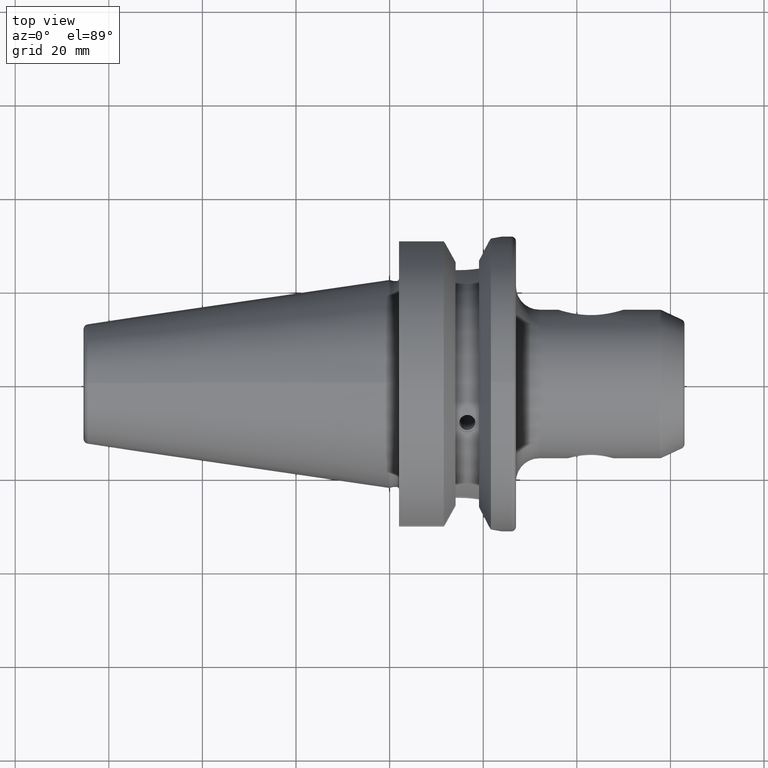
[diagram: clean part render]
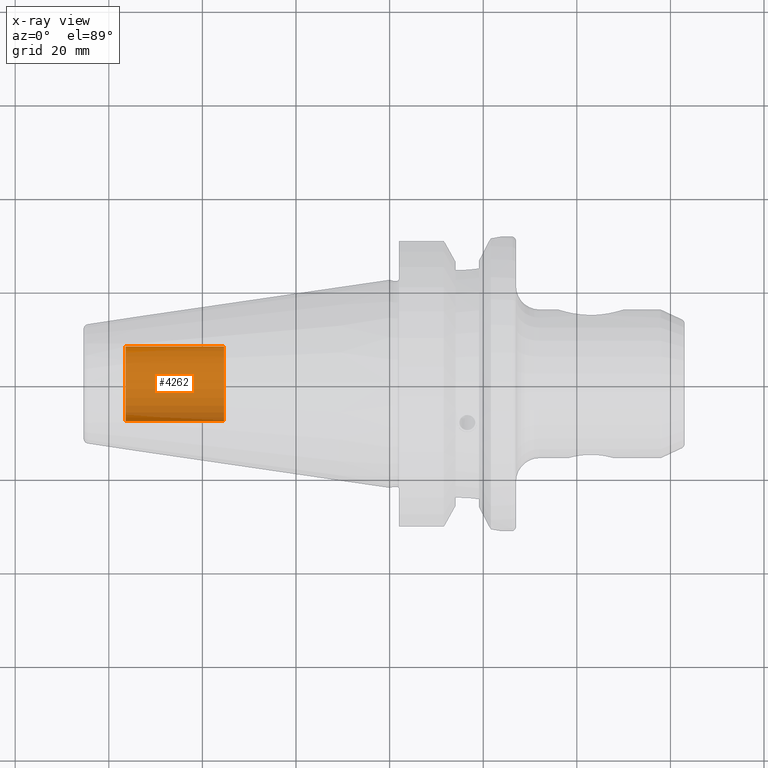
[diagram: x-ray — body ghosted, one internal face saturated and labeled with its STEP entity id]
A machine part, top view, then the same camera in x-ray: the body is ghosted and one INTERNAL B-rep face — a face not visible from any outside direction — is saturated and labeled: STEP entity #4262.
In plain terms, the highlighted cylindrical surface (partial cylindrical patch) has radius 8 mm, axis along (-1, 0, 0).
Its self-contained STEP definition (entity closure, byte-faithful):
#4197=CARTESIAN_POINT('',(-5.64E1,0.E0,0.E0));
#4198=DIRECTION('',(1.E0,0.E0,0.E0));
#4199=DIRECTION('',(0.E0,-1.E0,0.E0));
#4200=AXIS2_PLACEMENT_3D('',#4197,#4198,#4199);
#4207=DIRECTION('',(1.E0,0.E0,0.E0));
#4208=VECTOR('',#4207,2.1E1);
#4209=CARTESIAN_POINT('',(-5.64E1,-8.E0,0.E0));
#4210=LINE('',#4209,#4208);
#4211=DIRECTION('',(1.E0,0.E0,0.E0));
#4212=VECTOR('',#4211,2.1E1);
#4213=CARTESIAN_POINT('',(-5.64E1,8.E0,0.E0));
#4214=LINE('',#4213,#4212);
#4220=CARTESIAN_POINT('',(-3.54E1,0.E0,0.E0));
#4221=DIRECTION('',(-1.E0,0.E0,0.E0));
#4222=DIRECTION('',(0.E0,1.E0,0.E0));
#4223=AXIS2_PLACEMENT_3D('',#4220,#4221,#4222);
#4235=CARTESIAN_POINT('',(-3.54E1,8.E0,0.E0));
#4236=CARTESIAN_POINT('',(-3.54E1,-8.E0,0.E0));
#4237=VERTEX_POINT('',#4235);
#4238=VERTEX_POINT('',#4236);
#4239=CARTESIAN_POINT('',(-5.64E1,8.E0,0.E0));
#4240=CARTESIAN_POINT('',(-5.64E1,-8.E0,0.E0));
#4241=VERTEX_POINT('',#4239);
#4242=VERTEX_POINT('',#4240);
#4247=CARTESIAN_POINT('',(-1.373367445015E1,0.E0,0.E0));
#4248=DIRECTION('',(-1.E0,0.E0,0.E0));
#4249=DIRECTION('',(0.E0,1.E0,0.E0));
#4250=AXIS2_PLACEMENT_3D('',#4247,#4248,#4249);
#4251=CYLINDRICAL_SURFACE('',#4250,8.E0);
#4253=ORIENTED_EDGE('',*,*,#4252,.T.);
#4255=ORIENTED_EDGE('',*,*,#4254,.T.);
#4257=ORIENTED_EDGE('',*,*,#4256,.T.);
#4259=ORIENTED_EDGE('',*,*,#4258,.F.);
#4260=EDGE_LOOP('',(#4253,#4255,#4257,#4259));
#4261=FACE_OUTER_BOUND('',#4260,.F.);
#4262=ADVANCED_FACE('',(#4261),#4251,.F.);
#4201=CIRCLE('',#4200,8.E0);
#4224=CIRCLE('',#4223,8.E0);
#4252=EDGE_CURVE('',#4242,#4241,#4201,.T.);
#4254=EDGE_CURVE('',#4241,#4237,#4214,.T.);
#4256=EDGE_CURVE('',#4237,#4238,#4224,.T.);
#4258=EDGE_CURVE('',#4242,#4238,#4210,.T.);